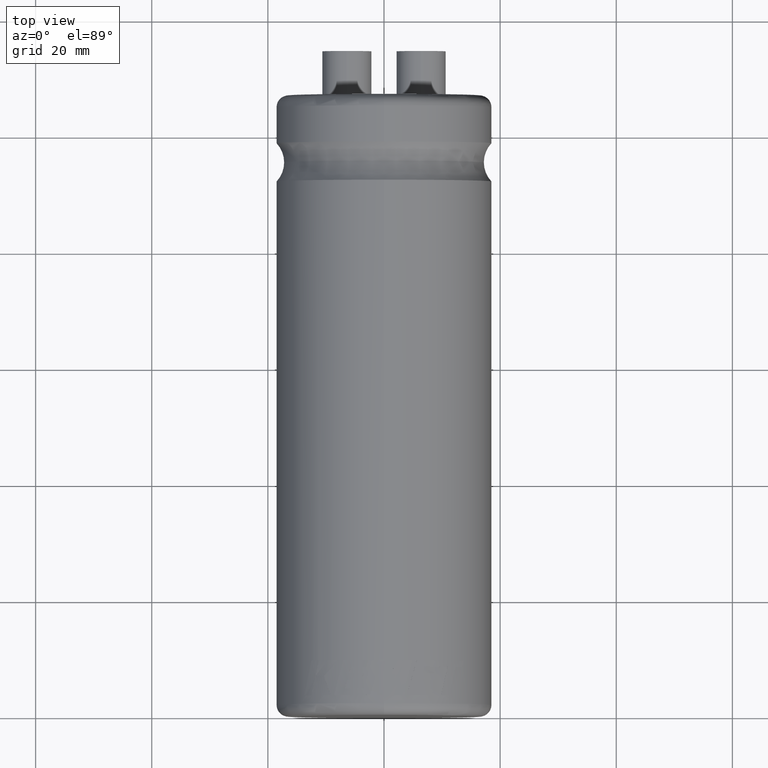
[diagram: clean part render]
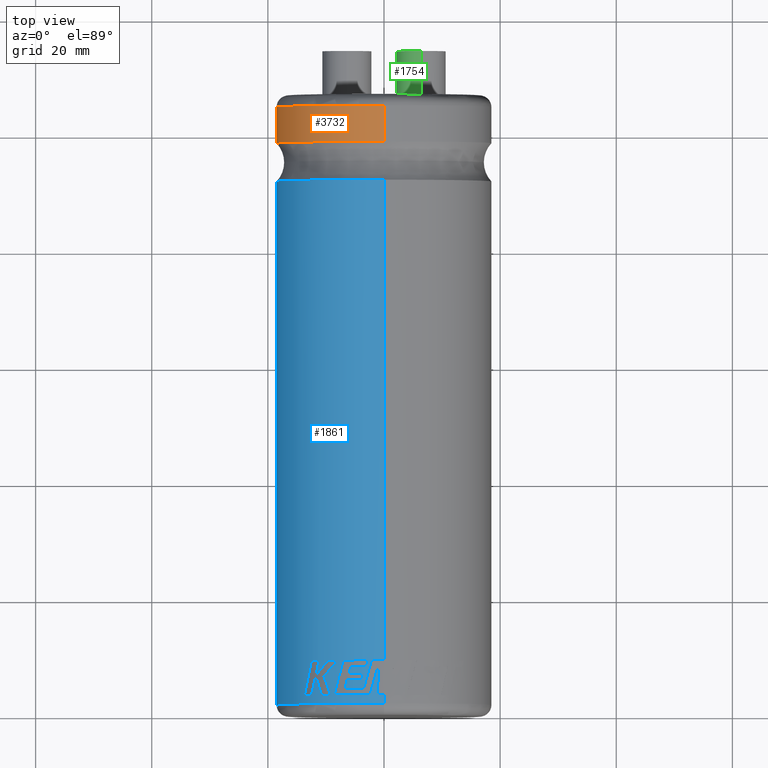
[diagram: same view with three faces highlighted in distinct colors, each labeled with its STEP entity id]
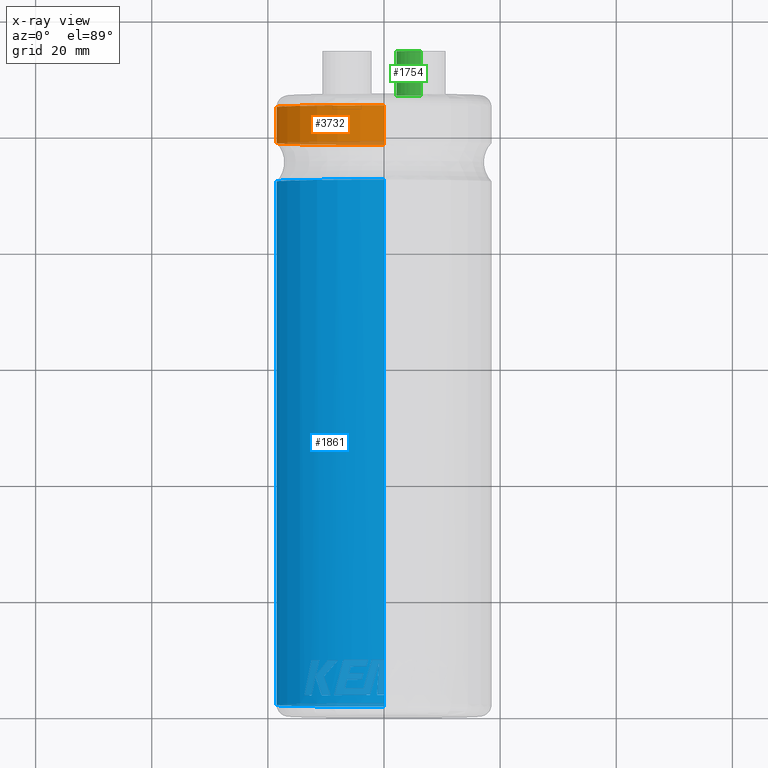
[diagram: x-ray of the same camera — body ghosted, the three highlighted faces saturated]
A machine part, top view with three faces highlighted in distinct colors.
The next image is the same camera in x-ray (body ghosted, the three faces saturated) — at least one of them is partly hidden behind the body in this view.
Their STEP definitions:

[orange] entity #3732 — the highlighted cylindrical surface (partial cylindrical patch) has radius 18.5 mm, axis along (-0, -1, -0).
#121 = DIRECTION ( 'NONE',  ( -0.0000000000000000000, -1.000000000000000000, -0.0000000000000000000 ) ) ;
#144 = EDGE_CURVE ( 'NONE', #1936, #468, #1390, .T. ) ;
#218 = ORIENTED_EDGE ( 'NONE', *, *, #144, .F. ) ;
#305 = CARTESIAN_POINT ( 'NONE',  ( 2.265596578422603000E-015, 98.77170000000002400, 18.49999999999999600 ) ) ;
#330 = DIRECTION ( 'NONE',  ( -2.656152684848929400E-018, -1.000000000000000000, -0.0000000000000000000 ) ) ;
#337 = EDGE_CURVE ( 'NONE', #4176, #3696, #3111, .T. ) ;
#340 = FACE_OUTER_BOUND ( 'NONE', #1415, .T. ) ;
#468 = VERTEX_POINT ( 'NONE', #305 ) ;
#702 = LINE ( 'NONE', #2162, #1705 ) ;
#776 = ORIENTED_EDGE ( 'NONE', *, *, #3254, .T. ) ;
#846 = EDGE_CURVE ( 'NONE', #1936, #1350, #3776, .T. ) ;
#1025 = DIRECTION ( 'NONE',  ( -2.656152684848929400E-018, -1.000000000000000000, -0.0000000000000000000 ) ) ;
#1034 = CARTESIAN_POINT ( 'NONE',  ( 0.0000000000000000000, 98.77170000000002400, -18.49999999999999600 ) ) ;
#1085 = ORIENTED_EDGE ( 'NONE', *, *, #3060, .F. ) ;
#1186 = CARTESIAN_POINT ( 'NONE',  ( 0.0000000000000000000, 105.0000000000000000, -18.50000000000000000 ) ) ;
#1350 = VERTEX_POINT ( 'NONE', #1186 ) ;
#1390 = LINE ( 'NONE', #1454, #4203 ) ;
#1415 = EDGE_LOOP ( 'NONE', ( #218, #3540, #776, #2956, #1085 ) ) ;
#1454 = CARTESIAN_POINT ( 'NONE',  ( 2.265596578422603400E-015, 107.0000000000000000, 18.50000000000000000 ) ) ;
#1656 = CIRCLE ( 'NONE', #2564, 18.49999999999999600 ) ;
#1705 = VECTOR ( 'NONE', #2176, 1000.000000000000000 ) ;
#1783 = DIRECTION ( 'NONE',  ( -0.0000000000000000000, -1.000000000000000000, -0.0000000000000000000 ) ) ;
#1936 = VERTEX_POINT ( 'NONE', #4211 ) ;
#1983 = CYLINDRICAL_SURFACE ( 'NONE', #2000, 18.50000000000000000 ) ;
#2000 = AXIS2_PLACEMENT_3D ( 'NONE', #2783, #1783, #2739 ) ;
#2162 = CARTESIAN_POINT ( 'NONE',  ( 0.0000000000000000000, 107.0000000000000000, -18.50000000000000000 ) ) ;
#2176 = DIRECTION ( 'NONE',  ( -0.0000000000000000000, -1.000000000000000000, -0.0000000000000000000 ) ) ;
#2225 = CARTESIAN_POINT ( 'NONE',  ( 0.0000000000000000000, 105.0000000000000000, 0.0000000000000000000 ) ) ;
#2256 = DIRECTION ( 'NONE',  ( -0.0000000000000000000, -1.000000000000000000, -0.0000000000000000000 ) ) ;
#2269 = DIRECTION ( 'NONE',  ( 0.0000000000000000000, 0.0000000000000000000, 1.000000000000000000 ) ) ;
#2275 = DIRECTION ( 'NONE',  ( 1.000000000000000000, 0.0000000000000000000, 0.0000000000000000000 ) ) ;
#2564 = AXIS2_PLACEMENT_3D ( 'NONE', #3308, #1025, #3998 ) ;
#2686 = CARTESIAN_POINT ( 'NONE',  ( -18.49999999999999600, 98.77170000000002400, 2.265596578422603000E-015 ) ) ;
#2739 = DIRECTION ( 'NONE',  ( 0.0000000000000000000, 0.0000000000000000000, -1.000000000000000000 ) ) ;
#2783 = CARTESIAN_POINT ( 'NONE',  ( 0.0000000000000000000, 107.0000000000000000, 0.0000000000000000000 ) ) ;
#2956 = ORIENTED_EDGE ( 'NONE', *, *, #337, .F. ) ;
#3060 = EDGE_CURVE ( 'NONE', #468, #4176, #1656, .T. ) ;
#3111 = CIRCLE ( 'NONE', #3640, 18.49999999999999600 ) ;
#3254 = EDGE_CURVE ( 'NONE', #1350, #3696, #702, .T. ) ;
#3308 = CARTESIAN_POINT ( 'NONE',  ( 2.623527161420930200E-016, 98.77170000000002400, 0.0000000000000000000 ) ) ;
#3535 = AXIS2_PLACEMENT_3D ( 'NONE', #2225, #2256, #2269 ) ;
#3540 = ORIENTED_EDGE ( 'NONE', *, *, #846, .T. ) ;
#3640 = AXIS2_PLACEMENT_3D ( 'NONE', #3894, #330, #2275 ) ;
#3696 = VERTEX_POINT ( 'NONE', #1034 ) ;
#3732 = ADVANCED_FACE ( 'NONE', ( #340 ), #1983, .T. ) ;
#3776 = CIRCLE ( 'NONE', #3535, 18.50000000000000000 ) ;
#3894 = CARTESIAN_POINT ( 'NONE',  ( 2.623527161420930200E-016, 98.77170000000002400, 0.0000000000000000000 ) ) ;
#3998 = DIRECTION ( 'NONE',  ( 1.000000000000000000, 0.0000000000000000000, 0.0000000000000000000 ) ) ;
#4176 = VERTEX_POINT ( 'NONE', #2686 ) ;
#4203 = VECTOR ( 'NONE', #121, 1000.000000000000000 ) ;
#4211 = CARTESIAN_POINT ( 'NONE',  ( 2.265596578422603400E-015, 105.0000000000000000, 18.50000000000000000 ) ) ;

[blue] entity #1861 — the highlighted cylindrical surface (partial cylindrical patch) has radius 18.5 mm, axis along (-0, -1, -0).
#23 = CARTESIAN_POINT ( 'NONE',  ( -9.565567793873212200, 7.622135524012671600, 15.86303202313030200 ) ) ;
#28 = ORIENTED_EDGE ( 'NONE', *, *, #3828, .F. ) ;
#32 = DIRECTION ( 'NONE',  ( -0.0000000000000000000, -1.000000000000000000, -0.0000000000000000000 ) ) ;
#52 = CARTESIAN_POINT ( 'NONE',  ( 2.265596578422603400E-015, 107.0000000000000000, 18.50000000000000000 ) ) ;
#62 = CARTESIAN_POINT ( 'NONE',  ( -3.056295239605185900, 6.199845156414312400, 18.25182916166814100 ) ) ;
#135 = EDGE_CURVE ( 'NONE', #1047, #568, #3431, .T. ) ;
#143 = AXIS2_PLACEMENT_3D ( 'NONE', #1617, #298, #2585 ) ;
#145 = DIRECTION ( 'NONE',  ( 0.0000000000000000000, 0.0000000000000000000, -1.000000000000000000 ) ) ;
#159 = VERTEX_POINT ( 'NONE', #2415 ) ;
#176 = VERTEX_POINT ( 'NONE', #805 ) ;
#180 = ORIENTED_EDGE ( 'NONE', *, *, #1229, .T. ) ;
#186 = VERTEX_POINT ( 'NONE', #1471 ) ;
#191 = CARTESIAN_POINT ( 'NONE',  ( -3.630860464061494300, 6.815978760768446800, 18.14051228137448000 ) ) ;
#214 = EDGE_CURVE ( 'NONE', #850, #2169, #1148, .T. ) ;
#233 = ORIENTED_EDGE ( 'NONE', *, *, #4144, .F. ) ;
#244 = CARTESIAN_POINT ( 'NONE',  ( -2.419941814314559900, 3.416545826402370300, 18.34104363484619100 ) ) ;
#265 = CARTESIAN_POINT ( 'NONE',  ( -11.09725498411489200, 4.511261338456789000, 14.80857918414736600 ) ) ;
#268 = CARTESIAN_POINT ( 'NONE',  ( -13.70730494300859300, 3.416545826402578500, 12.42416158939395700 ) ) ;
#298 = DIRECTION ( 'NONE',  ( -2.656152684848929400E-018, -1.000000000000000000, -0.0000000000000000000 ) ) ;
#301 = EDGE_CURVE ( 'NONE', #3597, #1211, #2187, .T. ) ;
#329 = EDGE_CURVE ( 'NONE', #486, #1411, #3685, .T. ) ;
#346 = CARTESIAN_POINT ( 'NONE',  ( 0.0000000000000000000, 9.464999478932936600, 0.0000000000000000000 ) ) ;
#351 = DIRECTION ( 'NONE',  ( -0.3795603293504707900, 0.0000000000000000000, 0.9251669883774292800 ) ) ;
#381 = CARTESIAN_POINT ( 'NONE',  ( -6.733186019749815900, 4.567267802801658200, 17.23119862410753800 ) ) ;
#389 = ORIENTED_EDGE ( 'NONE', *, *, #773, .F. ) ;
#416 = CARTESIAN_POINT ( 'NONE',  ( -11.73847591873613500, 6.885704996865235300, 14.29888747788623600 ) ) ;
#456 = CARTESIAN_POINT ( 'NONE',  ( -3.047086977346126400, 8.313707382978902800, 18.24733572203042400 ) ) ;
#477 = CARTESIAN_POINT ( 'NONE',  ( -11.54799074445287000, 7.745469829336562000, 14.45526367391256400 ) ) ;
#486 = VERTEX_POINT ( 'NONE', #2935 ) ;
#499 = EDGE_CURVE ( 'NONE', #1584, #3807, #3248, .T. ) ;
#501 = CARTESIAN_POINT ( 'NONE',  ( -11.07620430969916600, 7.745474655314933600, 14.84257028862000600 ) ) ;
#514 = CARTESIAN_POINT ( 'NONE',  ( -12.02655280575036700, 5.605976593076511500, 14.06095580002669900 ) ) ;
#530 = CARTESIAN_POINT ( 'NONE',  ( -12.26333664292341500, 4.511261235399148400, 13.85492781584004800 ) ) ;
#545 = DIRECTION ( 'NONE',  ( -0.0000000000000000000, -1.000000000000000000, -0.0000000000000000000 ) ) ;
#548 = ORIENTED_EDGE ( 'NONE', *, *, #1140, .T. ) ;
#549 = EDGE_CURVE ( 'NONE', #3807, #749, #3475, .T. ) ;
#568 = VERTEX_POINT ( 'NONE', #2060 ) ;
#610 = CARTESIAN_POINT ( 'NONE',  ( -11.44595731603481600, 5.605976490018870000, 14.54074092868498100 ) ) ;
#628 = CARTESIAN_POINT ( 'NONE',  ( -9.584144825532671800, 4.511261362659894300, 15.83035286152325000 ) ) ;
#633 = CARTESIAN_POINT ( 'NONE',  ( 0.0000000000000000000, 107.0000000000000000, -18.50000000000000000 ) ) ;
#636 = EDGE_CURVE ( 'NONE', #3500, #895, #2309, .T. ) ;
#654 = DIRECTION ( 'NONE',  ( 1.000000000000000000, 0.0000000000000000000, 0.0000000000000000000 ) ) ;
#667 = DIRECTION ( 'NONE',  ( -0.7409354023247888300, 0.0000000000000000000, 0.6715763021294031100 ) ) ;
#675 = ORIENTED_EDGE ( 'NONE', *, *, #329, .F. ) ;
#677 = CARTESIAN_POINT ( 'NONE',  ( -1.181796225752903100, 3.416545826402370300, 18.46221432225279100 ) ) ;
#740 = AXIS2_PLACEMENT_3D ( 'NONE', #1108, #1450, #145 ) ;
#745 = CARTESIAN_POINT ( 'NONE',  ( -9.190330409418754300, 3.416545826402370300, 16.05577238770259300 ) ) ;
#749 = VERTEX_POINT ( 'NONE', #3455 ) ;
#773 = EDGE_CURVE ( 'NONE', #186, #3585, #3168, .T. ) ;
#779 = AXIS2_PLACEMENT_3D ( 'NONE', #2625, #3595, #351 ) ;
#805 = CARTESIAN_POINT ( 'NONE',  ( -8.598692906086489200, 3.416545826402370300, 16.38024664975523900 ) ) ;
#836 = ORIENTED_EDGE ( 'NONE', *, *, #2118, .F. ) ;
#839 = CARTESIAN_POINT ( 'NONE',  ( -3.839333792519829200, 6.070544362652779700, 18.09722398683332000 ) ) ;
#850 = VERTEX_POINT ( 'NONE', #1850 ) ;
#857 = EDGE_CURVE ( 'NONE', #4242, #3292, #3619, .T. ) ;
#862 = AXIS2_PLACEMENT_3D ( 'NONE', #3889, #936, #654 ) ;
#895 = VERTEX_POINT ( 'NONE', #3528 ) ;
#904 = CARTESIAN_POINT ( 'NONE',  ( -12.48121360155726700, 9.464999478932936600, 13.65537648812004800 ) ) ;
#934 = ORIENTED_EDGE ( 'NONE', *, *, #3835, .T. ) ;
#936 = DIRECTION ( 'NONE',  ( -2.656152684848929400E-018, -1.000000000000000000, -0.0000000000000000000 ) ) ;
#959 = VERTEX_POINT ( 'NONE', #2662 ) ;
#968 = CARTESIAN_POINT ( 'NONE',  ( -11.15779938678336200, 9.464999478932936600, 14.75647359108187500 ) ) ;
#1000 = ORIENTED_EDGE ( 'NONE', *, *, #2416, .F. ) ;
#1010 = CARTESIAN_POINT ( 'NONE',  ( -0.8804364527443843100, 8.801325130819742900, 18.47903762788200100 ) ) ;
#1040 = DIRECTION ( 'NONE',  ( -0.0000000000000000000, -1.000000000000000000, -0.0000000000000000000 ) ) ;
#1047 = VERTEX_POINT ( 'NONE', #745 ) ;
#1058 = DIRECTION ( 'NONE',  ( -0.0000000000000000000, -1.000000000000000000, -0.0000000000000000000 ) ) ;
#1071 = CARTESIAN_POINT ( 'NONE',  ( -18.49999999999999600, 92.19120000000002300, 2.265596578422603000E-015 ) ) ;
#1092 = CARTESIAN_POINT ( 'NONE',  ( -11.73847591873613500, 6.885704996865235300, 14.29888747788623600 ) ) ;
#1093 = ORIENTED_EDGE ( 'NONE', *, *, #1168, .T. ) ;
#1096 = EDGE_LOOP ( 'NONE', ( #1992, #1408, #3931, #2491, #1720, #4027, #28, #3457, #4032, #3336, #1895 ) ) ;
#1106 = CIRCLE ( 'NONE', #143, 18.49999999999999600 ) ;
#1107 = CIRCLE ( 'NONE', #779, 18.50000000000000000 ) ;
#1108 = CARTESIAN_POINT ( 'NONE',  ( 0.0000000000000000000, 107.0000000000000000, 0.0000000000000000000 ) ) ;
#1140 = EDGE_CURVE ( 'NONE', #3500, #4171, #1106, .T. ) ;
#1148 = B_SPLINE_CURVE_WITH_KNOTS ( 'NONE', 3,
 ( #1812, #530, #514, #3476 ),
 .UNSPECIFIED., .F., .F.,
 ( 4, 4 ),
 ( 0.0000000000000000000, 1.000000000000000000 ),
 .UNSPECIFIED. ) ;
#1168 = EDGE_CURVE ( 'NONE', #159, #1211, #1899, .T. ) ;
#1176 = AXIS2_PLACEMENT_3D ( 'NONE', #1798, #3698, #1755 ) ;
#1181 = CARTESIAN_POINT ( 'NONE',  ( 0.0000000000000000000, 3.416545826402370300, 0.0000000000000000000 ) ) ;
#1182 = VERTEX_POINT ( 'NONE', #2614 ) ;
#1211 = VERTEX_POINT ( 'NONE', #2665 ) ;
#1217 = DIRECTION ( 'NONE',  ( -0.0000000000000000000, -1.000000000000000000, -0.0000000000000000000 ) ) ;
#1223 = CARTESIAN_POINT ( 'NONE',  ( -10.73946029209628800, 3.416545826402370300, 15.06366464823507400 ) ) ;
#1229 = EDGE_CURVE ( 'NONE', #3657, #3412, #3552, .T. ) ;
#1248 = DIRECTION ( 'NONE',  ( -0.3260433793378657000, 0.0000000000000000000, 0.9453548089420946700 ) ) ;
#1259 = B_SPLINE_CURVE_WITH_KNOTS ( 'NONE', 3,
 ( #3869, #610, #265, #1223 ),
 .UNSPECIFIED., .F., .F.,
 ( 4, 4 ),
 ( 0.0000000000000000000, 1.000000000000000000 ),
 .UNSPECIFIED. ) ;
#1263 = CARTESIAN_POINT ( 'NONE',  ( -1.908994159398237100, 5.211472465881422000, 18.40845875143796600 ) ) ;
#1272 = ORIENTED_EDGE ( 'NONE', *, *, #2451, .F. ) ;
#1276 = CARTESIAN_POINT ( 'NONE',  ( -9.969661555656196900, 5.605976465815858800, 15.59043784576921300 ) ) ;
#1277 = DIRECTION ( 'NONE',  ( -0.0000000000000000000, -1.000000000000000000, -0.0000000000000000000 ) ) ;
#1281 = CARTESIAN_POINT ( 'NONE',  ( 2.265596578422603400E-015, 92.19120000000002300, 18.49999999999999600 ) ) ;
#1305 = ORIENTED_EDGE ( 'NONE', *, *, #3478, .F. ) ;
#1341 = CARTESIAN_POINT ( 'NONE',  ( -2.126039348496618200, 9.464999478932936600, 18.37743063348747800 ) ) ;
#1357 = DIRECTION ( 'NONE',  ( -0.0000000000000000000, -1.000000000000000000, -0.0000000000000000000 ) ) ;
#1379 = CARTESIAN_POINT ( 'NONE',  ( -6.332467974765246600, 6.070544362652779700, 17.38245809281795900 ) ) ;
#1408 = ORIENTED_EDGE ( 'NONE', *, *, #214, .F. ) ;
#1411 = VERTEX_POINT ( 'NONE', #2485 ) ;
#1418 = AXIS2_PLACEMENT_3D ( 'NONE', #2512, #545, #2201 ) ;
#1421 = DIRECTION ( 'NONE',  ( -0.0000000000000000000, -1.000000000000000000, -0.0000000000000000000 ) ) ;
#1450 = DIRECTION ( 'NONE',  ( -0.0000000000000000000, -1.000000000000000000, -0.0000000000000000000 ) ) ;
#1469 = CARTESIAN_POINT ( 'NONE',  ( -8.598692906086489200, 3.416545826402370300, 16.38024664975523900 ) ) ;
#1471 = CARTESIAN_POINT ( 'NONE',  ( -3.839333792519829200, 6.070544362652779700, 18.09722398683332000 ) ) ;
#1472 = ORIENTED_EDGE ( 'NONE', *, *, #2970, .T. ) ;
#1484 = CARTESIAN_POINT ( 'NONE',  ( -2.724102542079248400, 9.464999478932936600, 18.29834050782303800 ) ) ;
#1516 = EDGE_CURVE ( 'NONE', #3585, #3597, #2987, .T. ) ;
#1520 = ORIENTED_EDGE ( 'NONE', *, *, #1633, .T. ) ;
#1561 = CARTESIAN_POINT ( 'NONE',  ( -2.126039348496618200, 9.464999478932936600, 18.37743063348747800 ) ) ;
#1584 = VERTEX_POINT ( 'NONE', #2978 ) ;
#1589 = AXIS2_PLACEMENT_3D ( 'NONE', #2916, #2884, #1248 ) ;
#1592 = B_SPLINE_CURVE_WITH_KNOTS ( 'NONE', 3,
 ( #1341, #3989, #62, #3648 ),
 .UNSPECIFIED., .F., .F.,
 ( 4, 4 ),
 ( 0.0000000000000000000, 1.000000000000000000 ),
 .UNSPECIFIED. ) ;
#1617 = CARTESIAN_POINT ( 'NONE',  ( 2.448739033994446700E-016, 92.19120000000002300, 0.0000000000000000000 ) ) ;
#1622 = CARTESIAN_POINT ( 'NONE',  ( -2.724102542079248400, 9.464999478932936600, 18.29834050782303800 ) ) ;
#1629 = AXIS2_PLACEMENT_3D ( 'NONE', #2089, #3719, #3323 ) ;
#1633 = EDGE_CURVE ( 'NONE', #1791, #1182, #3847, .T. ) ;
#1634 = CIRCLE ( 'NONE', #2876, 18.50000000000000000 ) ;
#1667 = EDGE_CURVE ( 'NONE', #186, #2444, #2736, .T. ) ;
#1678 = ORIENTED_EDGE ( 'NONE', *, *, #1516, .F. ) ;
#1703 = B_SPLINE_CURVE_WITH_KNOTS ( 'NONE', 3,
 ( #456, #1839, #2156, #1484 ),
 .UNSPECIFIED., .F., .F.,
 ( 4, 4 ),
 ( 0.0000000000000000000, 1.000000000000000000 ),
 .UNSPECIFIED. ) ;
#1707 = CARTESIAN_POINT ( 'NONE',  ( 0.0000000000000000000, 3.416545826402578500, 0.0000000000000000000 ) ) ;
#1717 = ORIENTED_EDGE ( 'NONE', *, *, #3933, .F. ) ;
#1720 = ORIENTED_EDGE ( 'NONE', *, *, #2754, .F. ) ;
#1724 = DIRECTION ( 'NONE',  ( -0.3422955662035268600, 0.0000000000000000000, 0.9395923293415112700 ) ) ;
#1742 = CARTESIAN_POINT ( 'NONE',  ( -11.78468292476196700, 6.700692002073294500, 14.26082916112607200 ) ) ;
#1755 = DIRECTION ( 'NONE',  ( -0.1882485858889339200, 0.0000000000000000000, 0.9821214130191930900 ) ) ;
#1765 = CARTESIAN_POINT ( 'NONE',  ( 0.0000000000000000000, 3.416545826402370300, 0.0000000000000000000 ) ) ;
#1788 = VERTEX_POINT ( 'NONE', #1092 ) ;
#1791 = VERTEX_POINT ( 'NONE', #3747 ) ;
#1798 = CARTESIAN_POINT ( 'NONE',  ( 0.0000000000000000000, 3.416545826402370300, 0.0000000000000000000 ) ) ;
#1811 = EDGE_CURVE ( 'NONE', #159, #3977, #1703, .T. ) ;
#1812 = CARTESIAN_POINT ( 'NONE',  ( -12.49472807171986600, 3.416545826402578500, 13.64301177943402400 ) ) ;
#1828 = FACE_OUTER_BOUND ( 'NONE', #2993, .T. ) ;
#1839 = CARTESIAN_POINT ( 'NONE',  ( -2.939578555093587600, 8.697471415049479400, 18.26528834362905200 ) ) ;
#1846 = CARTESIAN_POINT ( 'NONE',  ( -11.35438037590931900, 8.605234646461609000, 14.60783298081788400 ) ) ;
#1850 = CARTESIAN_POINT ( 'NONE',  ( -12.49472807171986600, 3.416545826402578500, 13.64301177943402400 ) ) ;
#1855 = B_SPLINE_CURVE_WITH_KNOTS ( 'NONE', 3,
 ( #381, #2645, #3614, #1379 ),
 .UNSPECIFIED., .F., .F.,
 ( 4, 4 ),
 ( 0.0000000000000000000, 1.000000000000000000 ),
 .UNSPECIFIED. ) ;
#1859 = EDGE_CURVE ( 'NONE', #2526, #176, #3647, .T. ) ;
#1861 = ADVANCED_FACE ( 'NONE', ( #1828, #3495 ), #3702, .T. ) ;
#1895 = ORIENTED_EDGE ( 'NONE', *, *, #135, .T. ) ;
#1898 = CARTESIAN_POINT ( 'NONE',  ( -3.482598838945277600, 3.416545826402370300, 18.16924614085507300 ) ) ;
#1899 = CIRCLE ( 'NONE', #3866, 18.50000000000000400 ) ;
#1911 = EDGE_CURVE ( 'NONE', #3412, #176, #2121, .T. ) ;
#1918 = ORIENTED_EDGE ( 'NONE', *, *, #636, .F. ) ;
#1925 = ORIENTED_EDGE ( 'NONE', *, *, #1911, .T. ) ;
#1927 = DIRECTION ( 'NONE',  ( -0.4647942111398102900, 0.0000000000000000000, 0.8854187378246076700 ) ) ;
#1992 = ORIENTED_EDGE ( 'NONE', *, *, #2800, .F. ) ;
#1998 = DIRECTION ( 'NONE',  ( 0.0000000000000000000, 0.0000000000000000000, 1.000000000000000000 ) ) ;
#2009 = DIRECTION ( 'NONE',  ( -0.0000000000000000000, -1.000000000000000000, -0.0000000000000000000 ) ) ;
#2060 = CARTESIAN_POINT ( 'NONE',  ( -10.73946029209628800, 3.416545826402370300, 15.06366464823507400 ) ) ;
#2089 = CARTESIAN_POINT ( 'NONE',  ( 0.0000000000000000000, 4.567267802801658200, 0.0000000000000000000 ) ) ;
#2094 = DIRECTION ( 'NONE',  ( -0.5805113671403400200, 0.0000000000000000000, 0.8142521431478416700 ) ) ;
#2111 = CARTESIAN_POINT ( 'NONE',  ( -12.48121360155726700, 9.464999478932936600, 13.65537648812004800 ) ) ;
#2118 = EDGE_CURVE ( 'NONE', #3802, #3915, #2235, .T. ) ;
#2121 = CIRCLE ( 'NONE', #2425, 18.49999999999999600 ) ;
#2136 = CIRCLE ( 'NONE', #1418, 18.49999999999999600 ) ;
#2143 = CARTESIAN_POINT ( 'NONE',  ( -7.893854935269744500, 9.464999478932936600, 16.73131956125748600 ) ) ;
#2156 = CARTESIAN_POINT ( 'NONE',  ( -2.831911470889645300, 9.081235446862358200, 18.28229082414239000 ) ) ;
#2169 = VERTEX_POINT ( 'NONE', #1742 ) ;
#2172 = CARTESIAN_POINT ( 'NONE',  ( -9.644926417625434600, 9.464999478932936600, 15.78687411739863600 ) ) ;
#2187 = B_SPLINE_CURVE_WITH_KNOTS ( 'NONE', 3,
 ( #2882, #3812, #4157, #2216 ),
 .UNSPECIFIED., .F., .F.,
 ( 4, 4 ),
 ( 0.0000000000000000000, 1.000000000000000000 ),
 .UNSPECIFIED. ) ;
#2201 = DIRECTION ( 'NONE',  ( -0.06388087706772450900, 0.0000000000000000000, 0.9979575309325834400 ) ) ;
#2216 = CARTESIAN_POINT ( 'NONE',  ( -5.721403982669148300, 8.313707382978902800, 17.59305364247769500 ) ) ;
#2235 = B_SPLINE_CURVE_WITH_KNOTS ( 'NONE', 3,
 ( #1010, #3643, #2666, #677 ),
 .UNSPECIFIED., .F., .F.,
 ( 4, 4 ),
 ( 0.0000000000000000000, 1.000000000000000000 ),
 .UNSPECIFIED. ) ;
#2242 = EDGE_CURVE ( 'NONE', #1047, #1584, #2543, .T. ) ;
#2309 = LINE ( 'NONE', #52, #3625 ) ;
#2366 = B_SPLINE_CURVE_WITH_KNOTS ( 'NONE', 3,
 ( #416, #477, #1846, #3129 ),
 .UNSPECIFIED., .F., .F.,
 ( 4, 4 ),
 ( 0.0000000000000000000, 1.000000000000000000 ),
 .UNSPECIFIED. ) ;
#2369 = CARTESIAN_POINT ( 'NONE',  ( 0.0000000000000000000, 9.464999478932936600, 0.0000000000000000000 ) ) ;
#2375 = CARTESIAN_POINT ( 'NONE',  ( 0.0000000000000000000, 8.313707382978902800, 0.0000000000000000000 ) ) ;
#2390 = VERTEX_POINT ( 'NONE', #968 ) ;
#2415 = CARTESIAN_POINT ( 'NONE',  ( -3.047086977346126400, 8.313707382978902800, 18.24733572203042400 ) ) ;
#2416 = EDGE_CURVE ( 'NONE', #895, #2914, #2773, .T. ) ;
#2425 = AXIS2_PLACEMENT_3D ( 'NONE', #1181, #1277, #1927 ) ;
#2438 = CARTESIAN_POINT ( 'NONE',  ( -8.085001937966119100, 5.432697414484516200, 16.64990503634390300 ) ) ;
#2439 = ORIENTED_EDGE ( 'NONE', *, *, #301, .F. ) ;
#2444 = VERTEX_POINT ( 'NONE', #3662 ) ;
#2451 = EDGE_CURVE ( 'NONE', #2914, #3404, #1592, .T. ) ;
#2465 = CARTESIAN_POINT ( 'NONE',  ( -10.37611606713928600, 8.605229820483240000, 15.34015678029653500 ) ) ;
#2469 = EDGE_CURVE ( 'NONE', #959, #2444, #1855, .T. ) ;
#2485 = CARTESIAN_POINT ( 'NONE',  ( 0.0000000000000000000, 2.000000000000001800, 18.50000000000000400 ) ) ;
#2491 = ORIENTED_EDGE ( 'NONE', *, *, #857, .F. ) ;
#2508 = CARTESIAN_POINT ( 'NONE',  ( -3.526353277203717600, 7.188695959941343400, 18.16080484351821400 ) ) ;
#2512 = CARTESIAN_POINT ( 'NONE',  ( 0.0000000000000000000, 3.416545826402370300, 0.0000000000000000000 ) ) ;
#2523 = AXIS2_PLACEMENT_3D ( 'NONE', #1765, #4042, #2094 ) ;
#2526 = VERTEX_POINT ( 'NONE', #4062 ) ;
#2543 = B_SPLINE_CURVE_WITH_KNOTS ( 'NONE', 3,
 ( #3232, #628, #1276, #2947 ),
 .UNSPECIFIED., .F., .F.,
 ( 4, 4 ),
 ( 0.0000000000000000000, 1.000000000000000000 ),
 .UNSPECIFIED. ) ;
#2547 = CARTESIAN_POINT ( 'NONE',  ( -12.90889047404187400, 7.448847893678540700, 13.26447357873704800 ) ) ;
#2580 = CARTESIAN_POINT ( 'NONE',  ( -1.395228365846771000, 7.006398491340672100, 18.45451029182692800 ) ) ;
#2585 = DIRECTION ( 'NONE',  ( 1.000000000000000000, 0.0000000000000000000, 0.0000000000000000000 ) ) ;
#2614 = CARTESIAN_POINT ( 'NONE',  ( 2.265596578422603800E-015, 2.000000000000001800, -18.50000000000000400 ) ) ;
#2625 = CARTESIAN_POINT ( 'NONE',  ( 0.0000000000000000000, 9.464999478932936600, 0.0000000000000000000 ) ) ;
#2630 = VECTOR ( 'NONE', #3954, 1000.000000000000000 ) ;
#2633 = CARTESIAN_POINT ( 'NONE',  ( 0.0000000000000000000, 2.000000000000001800, 0.0000000000000000000 ) ) ;
#2645 = CARTESIAN_POINT ( 'NONE',  ( -6.600202982850377400, 5.068359989750844000, 17.28316248016004100 ) ) ;
#2662 = CARTESIAN_POINT ( 'NONE',  ( -6.733186019749815900, 4.567267802801658200, 17.23119862410753800 ) ) ;
#2665 = CARTESIAN_POINT ( 'NONE',  ( -5.721403982669148300, 8.313707382978902800, 17.59305364247769500 ) ) ;
#2666 = CARTESIAN_POINT ( 'NONE',  ( -1.081390942482533000, 5.211472261220394300, 18.46864142697291900 ) ) ;
#2697 = B_SPLINE_CURVE_WITH_KNOTS ( 'NONE', 3,
 ( #244, #1263, #2580, #4195 ),
 .UNSPECIFIED., .F., .F.,
 ( 4, 4 ),
 ( 0.0000000000000000000, 1.000000000000000000 ),
 .UNSPECIFIED. ) ;
#2736 = CIRCLE ( 'NONE', #2969, 18.50000000000000000 ) ;
#2754 = EDGE_CURVE ( 'NONE', #2390, #4242, #3319, .T. ) ;
#2773 = CIRCLE ( 'NONE', #3543, 18.49999999999999600 ) ;
#2777 = B_SPLINE_CURVE_WITH_KNOTS ( 'NONE', 3,
 ( #2172, #2465, #501, #4126 ),
 .UNSPECIFIED., .F., .F.,
 ( 4, 4 ),
 ( 0.0000000000000000000, 1.000000000000000000 ),
 .UNSPECIFIED. ) ;
#2800 = EDGE_CURVE ( 'NONE', #2169, #568, #1259, .T. ) ;
#2802 = ORIENTED_EDGE ( 'NONE', *, *, #1667, .T. ) ;
#2876 = AXIS2_PLACEMENT_3D ( 'NONE', #2633, #3650, #1998 ) ;
#2882 = CARTESIAN_POINT ( 'NONE',  ( -6.031802517750511700, 7.188695959941343400, 17.48906396542875200 ) ) ;
#2884 = DIRECTION ( 'NONE',  ( -0.0000000000000000000, -1.000000000000000000, -0.0000000000000000000 ) ) ;
#2904 = CARTESIAN_POINT ( 'NONE',  ( 0.0000000000000000000, 9.464999478932936600, 0.0000000000000000000 ) ) ;
#2914 = VERTEX_POINT ( 'NONE', #1561 ) ;
#2916 = CARTESIAN_POINT ( 'NONE',  ( 0.0000000000000000000, 7.188695959941343400, 0.0000000000000000000 ) ) ;
#2935 = CARTESIAN_POINT ( 'NONE',  ( 2.265596578422603400E-015, 3.416545826402370300, 18.50000000000000000 ) ) ;
#2947 = CARTESIAN_POINT ( 'NONE',  ( -10.34583804930582900, 6.700692002073377100, 15.33667614111792300 ) ) ;
#2950 = CARTESIAN_POINT ( 'NONE',  ( -7.893854935269744500, 9.464999478932936600, 16.73131956125748600 ) ) ;
#2969 = AXIS2_PLACEMENT_3D ( 'NONE', #2994, #1058, #1724 ) ;
#2970 = EDGE_CURVE ( 'NONE', #4171, #1791, #3108, .T. ) ;
#2978 = CARTESIAN_POINT ( 'NONE',  ( -10.34583804930582900, 6.700692002073377100, 15.33667614111792300 ) ) ;
#2987 = CIRCLE ( 'NONE', #1589, 18.50000000000000000 ) ;
#2992 = DIRECTION ( 'NONE',  ( -0.5213473739256991900, 0.0000000000000000000, 0.8533445468864127000 ) ) ;
#2993 = EDGE_LOOP ( 'NONE', ( #1918, #548, #1472, #1520, #3098, #675, #934, #836, #1717, #180, #1925, #3981, #1305, #3618, #1093, #2439, #1678, #389, #2802, #4066, #233, #1272, #1000 ) ) ;
#2994 = CARTESIAN_POINT ( 'NONE',  ( 0.0000000000000000000, 6.070544362652779700, 0.0000000000000000000 ) ) ;
#3024 = CARTESIAN_POINT ( 'NONE',  ( -2.419941814314559900, 3.416545826402370300, 18.34104363484619100 ) ) ;
#3068 = CARTESIAN_POINT ( 'NONE',  ( -7.021866092983704500, 9.464999478932936600, 17.11558928498244100 ) ) ;
#3098 = ORIENTED_EDGE ( 'NONE', *, *, #4038, .T. ) ;
#3108 = CIRCLE ( 'NONE', #862, 18.49999999999999600 ) ;
#3114 = EDGE_CURVE ( 'NONE', #850, #3292, #3364, .T. ) ;
#3129 = CARTESIAN_POINT ( 'NONE',  ( -11.15779938678336200, 9.464999478932936600, 14.75647359108187500 ) ) ;
#3168 = B_SPLINE_CURVE_WITH_KNOTS ( 'NONE', 3,
 ( #839, #3821, #191, #2508 ),
 .UNSPECIFIED., .F., .F.,
 ( 4, 4 ),
 ( 0.0000000000000000000, 1.000000000000000000 ),
 .UNSPECIFIED. ) ;
#3197 = CARTESIAN_POINT ( 'NONE',  ( -13.31818886287575100, 5.432697411656982400, 12.85346482488650500 ) ) ;
#3231 = EDGE_CURVE ( 'NONE', #1788, #2390, #2366, .T. ) ;
#3232 = CARTESIAN_POINT ( 'NONE',  ( -9.190330409418754300, 3.416545826402370300, 16.05577238770259300 ) ) ;
#3248 = B_SPLINE_CURVE_WITH_KNOTS ( 'NONE', 3,
 ( #3256, #23, #3589, #2950 ),
 .UNSPECIFIED., .F., .F.,
 ( 4, 4 ),
 ( 0.0000000000000000000, 1.000000000000000000 ),
 .UNSPECIFIED. ) ;
#3256 = CARTESIAN_POINT ( 'NONE',  ( -10.34583804930582900, 6.700692002073377100, 15.33667614111792300 ) ) ;
#3292 = VERTEX_POINT ( 'NONE', #4130 ) ;
#3319 = CIRCLE ( 'NONE', #3874, 18.49999999999999600 ) ;
#3323 = DIRECTION ( 'NONE',  ( -0.3639560010675578800, 0.0000000000000000000, 0.9314161418436508500 ) ) ;
#3336 = ORIENTED_EDGE ( 'NONE', *, *, #2242, .F. ) ;
#3364 = CIRCLE ( 'NONE', #3660, 18.50000000000000000 ) ;
#3402 = CIRCLE ( 'NONE', #1629, 18.49999999999999600 ) ;
#3404 = VERTEX_POINT ( 'NONE', #3844 ) ;
#3412 = VERTEX_POINT ( 'NONE', #1898 ) ;
#3431 = CIRCLE ( 'NONE', #2523, 18.50000000000000400 ) ;
#3455 = CARTESIAN_POINT ( 'NONE',  ( -9.644926417625434600, 9.464999478932936600, 15.78687411739863600 ) ) ;
#3457 = ORIENTED_EDGE ( 'NONE', *, *, #549, .F. ) ;
#3475 = CIRCLE ( 'NONE', #3917, 18.50000000000000000 ) ;
#3476 = CARTESIAN_POINT ( 'NONE',  ( -11.78468292476196700, 6.700692002073294500, 14.26082916112607200 ) ) ;
#3478 = EDGE_CURVE ( 'NONE', #3977, #2526, #1107, .T. ) ;
#3495 = FACE_BOUND ( 'NONE', #1096, .T. ) ;
#3497 = DIRECTION ( 'NONE',  ( -0.6746601946787712500, 0.0000000000000000000, 0.7381284588173000500 ) ) ;
#3500 = VERTEX_POINT ( 'NONE', #1281 ) ;
#3528 = CARTESIAN_POINT ( 'NONE',  ( 2.265596578422603400E-015, 9.464999478932936600, 18.50000000000000000 ) ) ;
#3530 = VECTOR ( 'NONE', #1217, 1000.000000000000000 ) ;
#3543 = AXIS2_PLACEMENT_3D ( 'NONE', #346, #1357, #3602 ) ;
#3552 = CIRCLE ( 'NONE', #1176, 18.50000000000000000 ) ;
#3585 = VERTEX_POINT ( 'NONE', #3970 ) ;
#3589 = CARTESIAN_POINT ( 'NONE',  ( -8.745079207573862600, 8.543555956993648300, 16.32971101518030800 ) ) ;
#3595 = DIRECTION ( 'NONE',  ( -0.0000000000000000000, -1.000000000000000000, -0.0000000000000000000 ) ) ;
#3597 = VERTEX_POINT ( 'NONE', #4023 ) ;
#3602 = DIRECTION ( 'NONE',  ( -0.1149210458646823100, 0.0000000000000000000, 0.9933746288371612100 ) ) ;
#3614 = CARTESIAN_POINT ( 'NONE',  ( -6.466618367688350400, 5.569452175703579800, 17.33358680761470100 ) ) ;
#3618 = ORIENTED_EDGE ( 'NONE', *, *, #1811, .F. ) ;
#3619 = B_SPLINE_CURVE_WITH_KNOTS ( 'NONE', 3,
 ( #904, #2547, #3197, #268 ),
 .UNSPECIFIED., .F., .F.,
 ( 4, 4 ),
 ( 0.0000000000000000000, 1.000000000000000000 ),
 .UNSPECIFIED. ) ;
#3625 = VECTOR ( 'NONE', #1421, 1000.000000000000000 ) ;
#3627 = DIRECTION ( 'NONE',  ( -0.3092650801442782300, 0.0000000000000000000, 0.9509758725663617400 ) ) ;
#3643 = CARTESIAN_POINT ( 'NONE',  ( -0.9809332282235275800, 7.006398696001725500, 18.47424944430356300 ) ) ;
#3647 = B_SPLINE_CURVE_WITH_KNOTS ( 'NONE', 3,
 ( #3068, #3771, #2438, #1469 ),
 .UNSPECIFIED., .F., .F.,
 ( 4, 4 ),
 ( 0.0000000000000000000, 1.000000000000000000 ),
 .UNSPECIFIED. ) ;
#3648 = CARTESIAN_POINT ( 'NONE',  ( -3.517000963476270700, 4.567267802801658200, 18.16261831958451000 ) ) ;
#3650 = DIRECTION ( 'NONE',  ( 0.0000000000000000000, 1.000000000000000000, 0.0000000000000000000 ) ) ;
#3657 = VERTEX_POINT ( 'NONE', #3024 ) ;
#3660 = AXIS2_PLACEMENT_3D ( 'NONE', #1707, #1040, #667 ) ;
#3662 = CARTESIAN_POINT ( 'NONE',  ( -6.332467974765246600, 6.070544362652779700, 17.38245809281795900 ) ) ;
#3685 = LINE ( 'NONE', #3879, #3530 ) ;
#3698 = DIRECTION ( 'NONE',  ( -0.0000000000000000000, -1.000000000000000000, -0.0000000000000000000 ) ) ;
#3702 = CYLINDRICAL_SURFACE ( 'NONE', #740, 18.50000000000000000 ) ;
#3719 = DIRECTION ( 'NONE',  ( -0.0000000000000000000, -1.000000000000000000, -0.0000000000000000000 ) ) ;
#3747 = CARTESIAN_POINT ( 'NONE',  ( 0.0000000000000000000, 92.19120000000002300, -18.49999999999999600 ) ) ;
#3771 = CARTESIAN_POINT ( 'NONE',  ( -7.558617694943533700, 7.448847890850784000, 16.89538080653622000 ) ) ;
#3772 = CARTESIAN_POINT ( 'NONE',  ( -0.8804364527443843100, 8.801325130819742900, 18.47903762788200100 ) ) ;
#3802 = VERTEX_POINT ( 'NONE', #3772 ) ;
#3807 = VERTEX_POINT ( 'NONE', #2143 ) ;
#3812 = CARTESIAN_POINT ( 'NONE',  ( -5.928645723394378600, 7.563699767708700800, 17.52464170779108700 ) ) ;
#3821 = CARTESIAN_POINT ( 'NONE',  ( -3.735192484626525600, 6.443261561825676300, 18.11931760974934800 ) ) ;
#3828 = EDGE_CURVE ( 'NONE', #749, #1788, #2777, .T. ) ;
#3835 = EDGE_CURVE ( 'NONE', #486, #3915, #2136, .T. ) ;
#3844 = CARTESIAN_POINT ( 'NONE',  ( -3.517000963476270700, 4.567267802801658200, 18.16261831958451000 ) ) ;
#3847 = LINE ( 'NONE', #633, #2630 ) ;
#3848 = DIRECTION ( 'NONE',  ( -0.0000000000000000000, -1.000000000000000000, -0.0000000000000000000 ) ) ;
#3866 = AXIS2_PLACEMENT_3D ( 'NONE', #2375, #32, #3627 ) ;
#3869 = CARTESIAN_POINT ( 'NONE',  ( -11.78468292476196700, 6.700692002073294500, 14.26082916112607200 ) ) ;
#3874 = AXIS2_PLACEMENT_3D ( 'NONE', #2904, #3848, #3497 ) ;
#3879 = CARTESIAN_POINT ( 'NONE',  ( 2.265596578422603400E-015, 107.0000000000000000, 18.50000000000000000 ) ) ;
#3889 = CARTESIAN_POINT ( 'NONE',  ( 2.448739033994446700E-016, 92.19120000000002300, 0.0000000000000000000 ) ) ;
#3915 = VERTEX_POINT ( 'NONE', #4223 ) ;
#3917 = AXIS2_PLACEMENT_3D ( 'NONE', #2369, #2009, #2992 ) ;
#3931 = ORIENTED_EDGE ( 'NONE', *, *, #3114, .T. ) ;
#3933 = EDGE_CURVE ( 'NONE', #3657, #3802, #2697, .T. ) ;
#3954 = DIRECTION ( 'NONE',  ( -0.0000000000000000000, -1.000000000000000000, -0.0000000000000000000 ) ) ;
#3970 = CARTESIAN_POINT ( 'NONE',  ( -3.526353277203717600, 7.188695959941343400, 18.16080484351821400 ) ) ;
#3977 = VERTEX_POINT ( 'NONE', #1622 ) ;
#3981 = ORIENTED_EDGE ( 'NONE', *, *, #1859, .F. ) ;
#3989 = CARTESIAN_POINT ( 'NONE',  ( -2.592193915746544300, 7.832422125320291300, 18.32350236831155900 ) ) ;
#4023 = CARTESIAN_POINT ( 'NONE',  ( -6.031802517750511700, 7.188695959941343400, 17.48906396542875200 ) ) ;
#4027 = ORIENTED_EDGE ( 'NONE', *, *, #3231, .F. ) ;
#4032 = ORIENTED_EDGE ( 'NONE', *, *, #499, .F. ) ;
#4038 = EDGE_CURVE ( 'NONE', #1182, #1411, #1634, .T. ) ;
#4042 = DIRECTION ( 'NONE',  ( -0.0000000000000000000, -1.000000000000000000, -0.0000000000000000000 ) ) ;
#4062 = CARTESIAN_POINT ( 'NONE',  ( -7.021866092983704500, 9.464999478932936600, 17.11558928498244100 ) ) ;
#4066 = ORIENTED_EDGE ( 'NONE', *, *, #2469, .F. ) ;
#4126 = CARTESIAN_POINT ( 'NONE',  ( -11.73847591873613500, 6.885704996865235300, 14.29888747788623600 ) ) ;
#4130 = CARTESIAN_POINT ( 'NONE',  ( -13.70730494300859300, 3.416545826402578500, 12.42416158939395700 ) ) ;
#4144 = EDGE_CURVE ( 'NONE', #3404, #959, #3402, .T. ) ;
#4157 = CARTESIAN_POINT ( 'NONE',  ( -5.825174145570997600, 7.938703575211545300, 17.55930674240143900 ) ) ;
#4171 = VERTEX_POINT ( 'NONE', #1071 ) ;
#4195 = CARTESIAN_POINT ( 'NONE',  ( -0.8804364527443843100, 8.801325130819742900, 18.47903762788200100 ) ) ;
#4223 = CARTESIAN_POINT ( 'NONE',  ( -1.181796225752903100, 3.416545826402370300, 18.46221432225279100 ) ) ;
#4242 = VERTEX_POINT ( 'NONE', #2111 ) ;

[green] entity #1754 — the highlighted cylindrical surface (edge-blend (fillet) strip) has radius 4.25 mm, axis along (-0, -1, -0).
#114 = VERTEX_POINT ( 'NONE', #2407 ) ;
#242 = AXIS2_PLACEMENT_3D ( 'NONE', #2525, #564, #2856 ) ;
#286 = ORIENTED_EDGE ( 'NONE', *, *, #309, .T. ) ;
#309 = EDGE_CURVE ( 'NONE', #114, #2955, #2364, .T. ) ;
#564 = DIRECTION ( 'NONE',  ( 0.0000000000000000000, 1.000000000000000000, 0.0000000000000000000 ) ) ;
#635 = AXIS2_PLACEMENT_3D ( 'NONE', #1750, #3652, #2031 ) ;
#732 = FACE_OUTER_BOUND ( 'NONE', #3042, .T. ) ;
#992 = ORIENTED_EDGE ( 'NONE', *, *, #1200, .F. ) ;
#1012 = AXIS2_PLACEMENT_3D ( 'NONE', #1237, #2544, #1923 ) ;
#1023 = DIRECTION ( 'NONE',  ( -0.0000000000000000000, -1.000000000000000000, -0.0000000000000000000 ) ) ;
#1200 = EDGE_CURVE ( 'NONE', #1316, #2955, #2943, .T. ) ;
#1237 = CARTESIAN_POINT ( 'NONE',  ( 6.400000000000010100, 114.5999999999999900, 6.938893903907228400E-015 ) ) ;
#1316 = VERTEX_POINT ( 'NONE', #3392 ) ;
#1690 = CARTESIAN_POINT ( 'NONE',  ( 6.400000000000011000, 114.5999999999999900, 4.250000000000007100 ) ) ;
#1750 = CARTESIAN_POINT ( 'NONE',  ( 6.400000000000010100, 114.5999999999999900, 6.938893903907228400E-015 ) ) ;
#1754 = ADVANCED_FACE ( 'NONE', ( #732 ), #2482, .T. ) ;
#1923 = DIRECTION ( 'NONE',  ( 0.0000000000000000000, 0.0000000000000000000, 1.000000000000000000 ) ) ;
#2031 = DIRECTION ( 'NONE',  ( 0.0000000000000000000, 0.0000000000000000000, -1.000000000000000000 ) ) ;
#2237 = ORIENTED_EDGE ( 'NONE', *, *, #2693, .T. ) ;
#2285 = CARTESIAN_POINT ( 'NONE',  ( 6.400000000000010100, 114.5999999999999900, -4.249999999999993800 ) ) ;
#2364 = CIRCLE ( 'NONE', #242, 4.250000000000000000 ) ;
#2407 = CARTESIAN_POINT ( 'NONE',  ( 6.400000000000010100, 107.0000000000000000, -4.249999999999993800 ) ) ;
#2482 = CYLINDRICAL_SURFACE ( 'NONE', #635, 4.250000000000000000 ) ;
#2525 = CARTESIAN_POINT ( 'NONE',  ( 6.400000000000010100, 107.0000000000000000, 6.938893903907228400E-015 ) ) ;
#2544 = DIRECTION ( 'NONE',  ( -0.0000000000000000000, -1.000000000000000000, -0.0000000000000000000 ) ) ;
#2693 = EDGE_CURVE ( 'NONE', #4077, #114, #2926, .T. ) ;
#2718 = EDGE_CURVE ( 'NONE', #1316, #4077, #3531, .T. ) ;
#2821 = VECTOR ( 'NONE', #3418, 1000.000000000000000 ) ;
#2856 = DIRECTION ( 'NONE',  ( 0.0000000000000000000, 0.0000000000000000000, 1.000000000000000000 ) ) ;
#2926 = LINE ( 'NONE', #3468, #2821 ) ;
#2943 = LINE ( 'NONE', #1690, #4220 ) ;
#2955 = VERTEX_POINT ( 'NONE', #4250 ) ;
#3042 = EDGE_LOOP ( 'NONE', ( #992, #3510, #2237, #286 ) ) ;
#3392 = CARTESIAN_POINT ( 'NONE',  ( 6.400000000000011000, 114.5999999999999900, 4.250000000000007100 ) ) ;
#3418 = DIRECTION ( 'NONE',  ( -0.0000000000000000000, -1.000000000000000000, -0.0000000000000000000 ) ) ;
#3468 = CARTESIAN_POINT ( 'NONE',  ( 6.400000000000010100, 114.5999999999999900, -4.249999999999993800 ) ) ;
#3510 = ORIENTED_EDGE ( 'NONE', *, *, #2718, .T. ) ;
#3531 = CIRCLE ( 'NONE', #1012, 4.250000000000000000 ) ;
#3652 = DIRECTION ( 'NONE',  ( -0.0000000000000000000, -1.000000000000000000, -0.0000000000000000000 ) ) ;
#4077 = VERTEX_POINT ( 'NONE', #2285 ) ;
#4220 = VECTOR ( 'NONE', #1023, 1000.000000000000000 ) ;
#4250 = CARTESIAN_POINT ( 'NONE',  ( 6.400000000000011000, 107.0000000000000000, 4.250000000000007100 ) ) ;